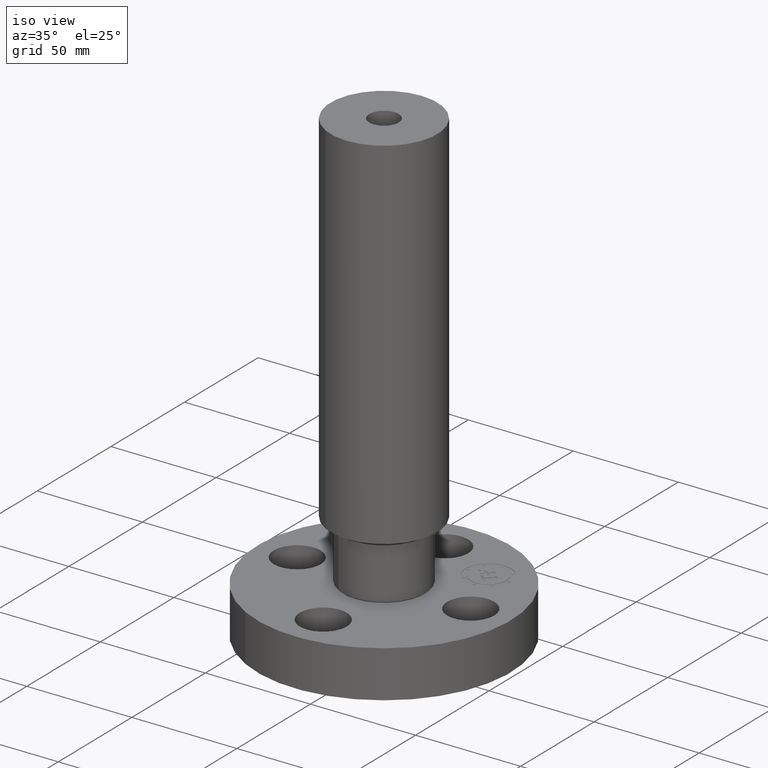
[diagram: clean part render]
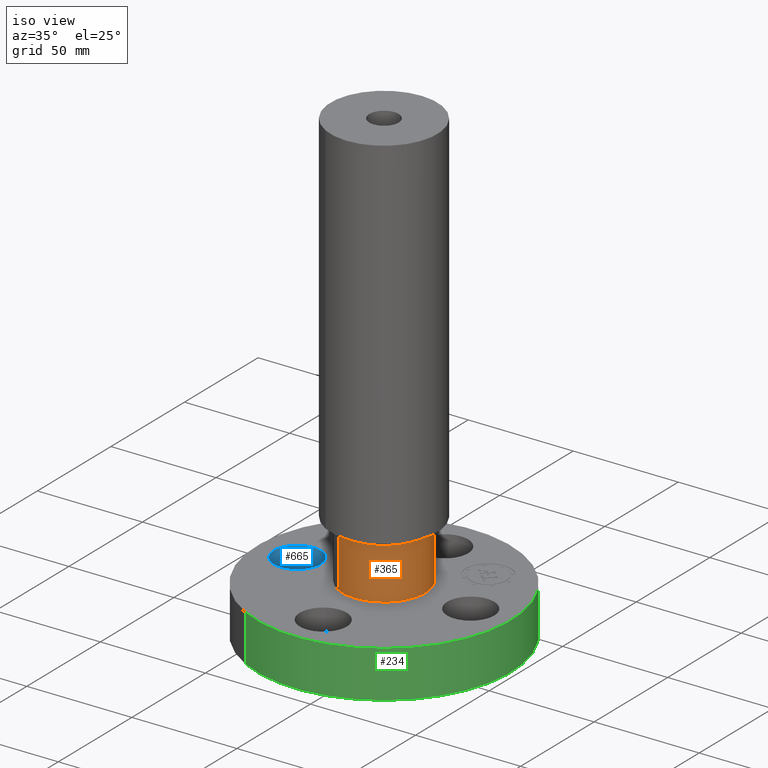
[diagram: same view with three faces highlighted in distinct colors, each labeled with its STEP entity id]
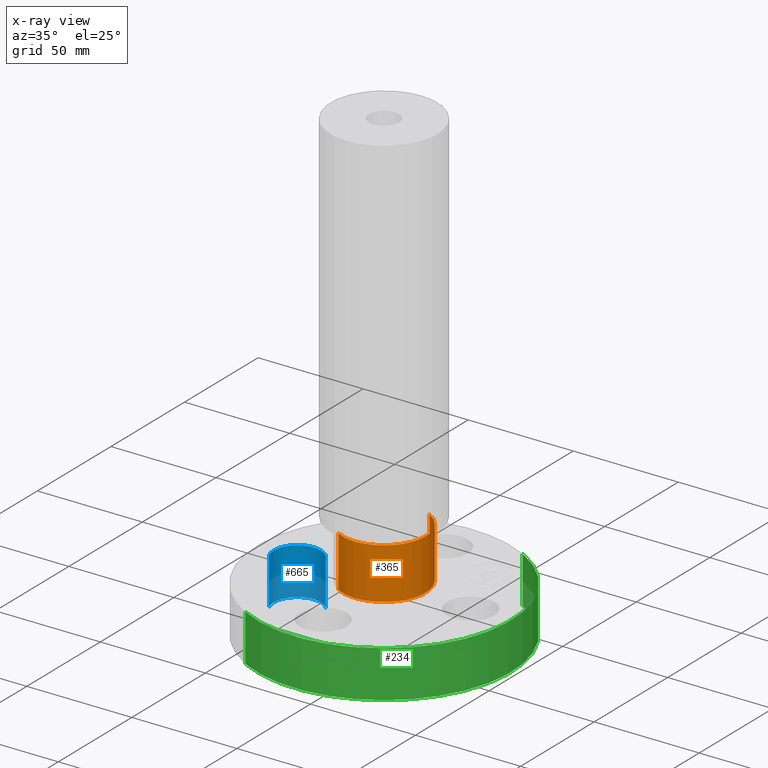
[diagram: x-ray of the same camera — body ghosted, the three highlighted faces saturated]
A machine part, iso view with three faces highlighted in distinct colors.
The next image is the same camera in x-ray (body ghosted, the three faces saturated) — at least one of them is partly hidden behind the body in this view.
Their STEP definitions:

[orange] entity #365 — the highlighted cylindrical surface (partial cylindrical patch) has radius 19.812 mm, axis along (0, 0, -1).
#306=AXIS2_PLACEMENT_3D('Circle Axis2P3D',#304,#305,$) ;
#338=AXIS2_PLACEMENT_3D('Cylinder Axis2P3D',#335,#336,#337) ;
#349=AXIS2_PLACEMENT_3D('Circle Axis2P3D',#347,#348,$) ;
#301=CARTESIAN_POINT('Vertex',(0.373951920113,0.684514398277,0.920980762117)) ;
#304=CARTESIAN_POINT('Axis2P3D Location',(0.,0.,0.920980762117)) ;
#308=CARTESIAN_POINT('Vertex',(-0.373951920113,-0.684514398277,0.920980762117)) ;
#335=CARTESIAN_POINT('Axis2P3D Location',(0.,0.,4.25000000002)) ;
#340=CARTESIAN_POINT('Line Origine',(0.373951920113,0.684514398277,1.40049038106)) ;
#344=CARTESIAN_POINT('Vertex',(0.373951920113,0.684514398277,1.88000000001)) ;
#347=CARTESIAN_POINT('Axis2P3D Location',(0.,0.,1.88000000001)) ;
#351=CARTESIAN_POINT('Vertex',(-0.373951920113,-0.684514398277,1.88000000001)) ;
#354=CARTESIAN_POINT('Line Origine',(-0.373951920113,-0.684514398277,1.40049038106)) ;
#305=DIRECTION('Axis2P3D Direction',(-0.,0.,0.0393700787402)) ;
#336=DIRECTION('Axis2P3D Direction',(0.,0.,-0.0393700787402)) ;
#337=DIRECTION('Axis2P3D XDirection',(-0.0188750212049,-0.0345504945626,0.)) ;
#341=DIRECTION('Vector Direction',(0.,0.,-0.0393700787402)) ;
#348=DIRECTION('Axis2P3D Direction',(0.,0.,-0.0393700787402)) ;
#355=DIRECTION('Vector Direction',(0.,0.,-0.0393700787402)) ;
#342=VECTOR('Line Direction',#341,0.0393700787402) ;
#356=VECTOR('Line Direction',#355,0.0393700787402) ;
#360=ORIENTED_EDGE('',*,*,#310,.F.) ;
#361=ORIENTED_EDGE('',*,*,#346,.T.) ;
#362=ORIENTED_EDGE('',*,*,#353,.T.) ;
#363=ORIENTED_EDGE('',*,*,#358,.F.) ;
#365=ADVANCED_FACE('PartBody',(#364),#339,.T.) ;
#307=CIRCLE('generated circle',#306,0.780000000003) ;
#350=CIRCLE('generated circle',#349,0.780000000003) ;
#339=CYLINDRICAL_SURFACE('generated cylinder',#338,0.780000000003) ;
#310=EDGE_CURVE('',#302,#309,#307,.F.) ;
#346=EDGE_CURVE('',#302,#345,#343,.F.) ;
#353=EDGE_CURVE('',#345,#352,#350,.T.) ;
#358=EDGE_CURVE('',#309,#352,#357,.F.) ;
#359=EDGE_LOOP('',(#360,#361,#362,#363)) ;
#364=FACE_OUTER_BOUND('',#359,.T.) ;
#343=LINE('Line',#340,#342) ;
#357=LINE('Line',#354,#356) ;
#302=VERTEX_POINT('',#301) ;
#309=VERTEX_POINT('',#308) ;
#345=VERTEX_POINT('',#344) ;
#352=VERTEX_POINT('',#351) ;

[blue] entity #665 — the highlighted cylindrical surface (edge-blend (fillet) strip) has radius 11.176 mm, axis along (0, 0, 1).
#145=AXIS2_PLACEMENT_3D('Circle Axis2P3D',#143,#144,$) ;
#638=AXIS2_PLACEMENT_3D('Cylinder Axis2P3D',#635,#636,#637) ;
#649=AXIS2_PLACEMENT_3D('Circle Axis2P3D',#647,#648,$) ;
#143=CARTESIAN_POINT('Axis2P3D Location',(-1.62500000001,-1.39870617276E-016,0.)) ;
#147=CARTESIAN_POINT('Vertex',(-2.01113632724,-0.210947236987,0.)) ;
#149=CARTESIAN_POINT('Vertex',(-1.23886367277,0.210947236987,0.)) ;
#635=CARTESIAN_POINT('Axis2P3D Location',(-1.62500000001,-1.99005104862E-016,0.00393700787402)) ;
#640=CARTESIAN_POINT('Line Origine',(-1.23886367277,0.210947236987,0.440000000002)) ;
#644=CARTESIAN_POINT('Vertex',(-1.23886367277,0.210947236987,0.880000000004)) ;
#647=CARTESIAN_POINT('Axis2P3D Location',(-1.62500000001,-1.99005104862E-016,0.880000000004)) ;
#651=CARTESIAN_POINT('Vertex',(-2.01113632724,-0.210947236987,0.880000000004)) ;
#654=CARTESIAN_POINT('Line Origine',(-2.01113632724,-0.210947236987,0.440000000002)) ;
#144=DIRECTION('Axis2P3D Direction',(0.,0.,-0.0393700787402)) ;
#636=DIRECTION('Axis2P3D Direction',(0.,0.,0.0393700787402)) ;
#637=DIRECTION('Axis2P3D XDirection',(-0.0345504945626,-0.0188750212049,0.)) ;
#641=DIRECTION('Vector Direction',(0.,0.,0.0393700787402)) ;
#648=DIRECTION('Axis2P3D Direction',(0.,0.,0.0393700787402)) ;
#655=DIRECTION('Vector Direction',(0.,0.,0.0393700787402)) ;
#642=VECTOR('Line Direction',#641,0.0393700787402) ;
#656=VECTOR('Line Direction',#655,0.0393700787402) ;
#660=ORIENTED_EDGE('',*,*,#646,.F.) ;
#661=ORIENTED_EDGE('',*,*,#653,.F.) ;
#662=ORIENTED_EDGE('',*,*,#658,.T.) ;
#663=ORIENTED_EDGE('',*,*,#151,.T.) ;
#665=ADVANCED_FACE('PartBody',(#664),#639,.F.) ;
#146=CIRCLE('generated circle',#145,0.440000000002) ;
#650=CIRCLE('generated circle',#649,0.440000000002) ;
#639=CYLINDRICAL_SURFACE('generated cylinder',#638,0.440000000002) ;
#151=EDGE_CURVE('',#148,#150,#146,.T.) ;
#646=EDGE_CURVE('',#645,#150,#643,.F.) ;
#653=EDGE_CURVE('',#652,#645,#650,.F.) ;
#658=EDGE_CURVE('',#652,#148,#657,.F.) ;
#659=EDGE_LOOP('',(#660,#661,#662,#663)) ;
#664=FACE_OUTER_BOUND('',#659,.T.) ;
#643=LINE('Line',#640,#642) ;
#657=LINE('Line',#654,#656) ;
#148=VERTEX_POINT('',#147) ;
#150=VERTEX_POINT('',#149) ;
#645=VERTEX_POINT('',#644) ;
#652=VERTEX_POINT('',#651) ;

[green] entity #234 — the highlighted cylindrical surface (partial cylindrical patch) has radius 60.325 mm, axis along (0, 0, -1).
#91=AXIS2_PLACEMENT_3D('Circle Axis2P3D',#89,#90,$) ;
#195=AXIS2_PLACEMENT_3D('Cylinder Axis2P3D',#192,#193,#194) ;
#225=AXIS2_PLACEMENT_3D('Circle Axis2P3D',#223,#224,$) ;
#84=CARTESIAN_POINT('Vertex',(-1.13863565419,-2.0842585845,0.)) ;
#86=CARTESIAN_POINT('Vertex',(1.13863565419,2.0842585845,0.)) ;
#89=CARTESIAN_POINT('Axis2P3D Location',(0.,0.,0.)) ;
#192=CARTESIAN_POINT('Axis2P3D Location',(0.,0.,4.25000000002)) ;
#197=CARTESIAN_POINT('Line Origine',(-1.13863565419,-2.0842585845,0.440000000002)) ;
#201=CARTESIAN_POINT('Vertex',(-1.13863565419,-2.0842585845,0.880000000004)) ;
#208=CARTESIAN_POINT('Vertex',(1.13863565419,2.0842585845,0.880000000004)) ;
#211=CARTESIAN_POINT('Line Origine',(1.13863565419,2.0842585845,0.440000000002)) ;
#223=CARTESIAN_POINT('Axis2P3D Location',(0.,0.,0.880000000004)) ;
#90=DIRECTION('Axis2P3D Direction',(0.,0.,-0.0393700787402)) ;
#193=DIRECTION('Axis2P3D Direction',(0.,0.,-0.0393700787402)) ;
#194=DIRECTION('Axis2P3D XDirection',(0.0188750212049,0.0345504945626,0.)) ;
#198=DIRECTION('Vector Direction',(0.,0.,-0.0393700787402)) ;
#212=DIRECTION('Vector Direction',(0.,0.,-0.0393700787402)) ;
#224=DIRECTION('Axis2P3D Direction',(0.,0.,-0.0393700787402)) ;
#199=VECTOR('Line Direction',#198,0.0393700787402) ;
#213=VECTOR('Line Direction',#212,0.0393700787402) ;
#229=ORIENTED_EDGE('',*,*,#93,.F.) ;
#230=ORIENTED_EDGE('',*,*,#215,.T.) ;
#231=ORIENTED_EDGE('',*,*,#227,.T.) ;
#232=ORIENTED_EDGE('',*,*,#203,.F.) ;
#234=ADVANCED_FACE('PartBody',(#233),#196,.T.) ;
#92=CIRCLE('generated circle',#91,2.37500000001) ;
#226=CIRCLE('generated circle',#225,2.37500000001) ;
#196=CYLINDRICAL_SURFACE('generated cylinder',#195,2.37500000001) ;
#93=EDGE_CURVE('',#87,#85,#92,.T.) ;
#203=EDGE_CURVE('',#85,#202,#200,.F.) ;
#215=EDGE_CURVE('',#87,#209,#214,.F.) ;
#227=EDGE_CURVE('',#209,#202,#226,.T.) ;
#228=EDGE_LOOP('',(#229,#230,#231,#232)) ;
#233=FACE_OUTER_BOUND('',#228,.T.) ;
#200=LINE('Line',#197,#199) ;
#214=LINE('Line',#211,#213) ;
#85=VERTEX_POINT('',#84) ;
#87=VERTEX_POINT('',#86) ;
#202=VERTEX_POINT('',#201) ;
#209=VERTEX_POINT('',#208) ;